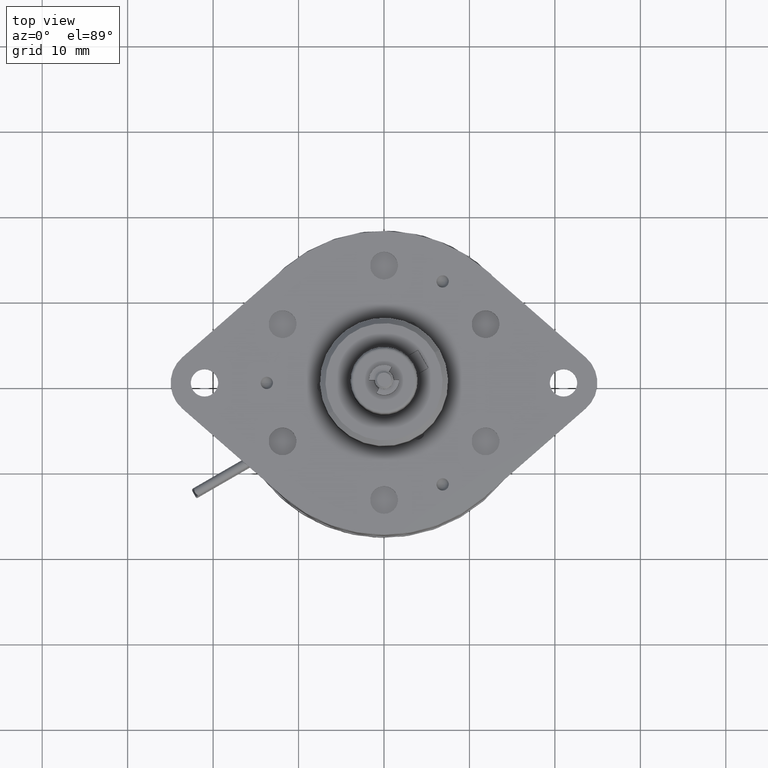
[diagram: clean part render]
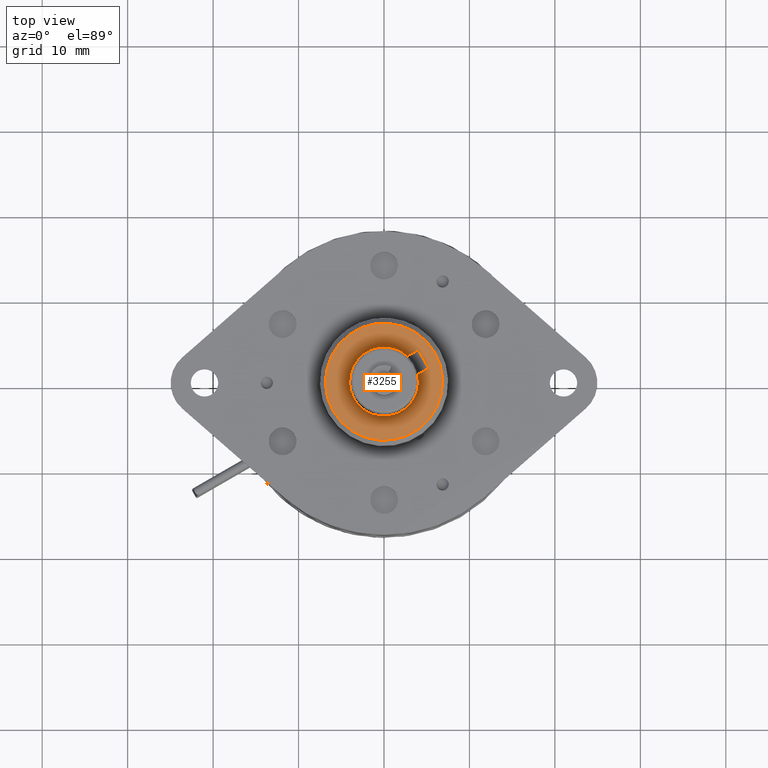
[diagram: same view with one face highlighted and labeled with its STEP entity id]
A machine part, top view. The second image highlights one B-rep face of the part: STEP entity #3255.
In plain terms, the highlighted planar face has unit normal (0, 0, -1).
Its self-contained STEP definition (entity closure, byte-faithful):
#3002=DIRECTION('',(-4.309291866472E-14,1.E0,0.E0));
#3003=VECTOR('',#3002,5.426430416122E-2);
#3004=CARTESIAN_POINT('',(-4.9E-2,1.507356958388E-1,0.E0));
#3005=LINE('',#3004,#3003);
#3006=CARTESIAN_POINT('',(0.E0,0.E0,0.E0));
#3007=DIRECTION('',(0.E0,0.E0,-1.E0));
#3008=DIRECTION('',(0.E0,-1.E0,0.E0));
#3009=AXIS2_PLACEMENT_3D('',#3006,#3007,#3008);
#3011=CARTESIAN_POINT('',(0.E0,0.E0,0.E0));
#3012=DIRECTION('',(0.E0,0.E0,-1.E0));
#3013=DIRECTION('',(0.E0,1.E0,0.E0));
#3014=AXIS2_PLACEMENT_3D('',#3011,#3012,#3013);
#3016=CARTESIAN_POINT('',(4.4E-2,2.05E-1,0.E0));
#3017=DIRECTION('',(0.E0,0.E0,1.E0));
#3018=DIRECTION('',(1.E0,-1.110223024625E-14,0.E0));
#3019=AXIS2_PLACEMENT_3D('',#3016,#3017,#3018);
#3021=CARTESIAN_POINT('',(-4.4E-2,2.05E-1,0.E0));
#3022=DIRECTION('',(0.E0,0.E0,1.E0));
#3023=DIRECTION('',(0.E0,1.E0,0.E0));
#3024=AXIS2_PLACEMENT_3D('',#3021,#3022,#3023);
#3026=CARTESIAN_POINT('',(0.E0,0.E0,0.E0));
#3027=DIRECTION('',(0.E0,0.E0,1.E0));
#3028=DIRECTION('',(-3.091482649842E-1,9.510138538724E-1,0.E0));
#3029=AXIS2_PLACEMENT_3D('',#3026,#3027,#3028);
#3031=CARTESIAN_POINT('',(0.E0,0.E0,0.E0));
#3032=DIRECTION('',(0.E0,0.E0,1.E0));
#3033=DIRECTION('',(0.E0,-1.E0,0.E0));
#3034=AXIS2_PLACEMENT_3D('',#3031,#3032,#3033);
#3100=DIRECTION('',(-4.334866298914E-14,-1.E0,0.E0));
#3101=VECTOR('',#3100,5.426430416122E-2);
#3102=CARTESIAN_POINT('',(4.9E-2,2.05E-1,0.E0));
#3103=LINE('',#3102,#3101);
#3112=DIRECTION('',(1.E0,0.E0,0.E0));
#3113=VECTOR('',#3112,8.8E-2);
#3114=CARTESIAN_POINT('',(-4.4E-2,2.1E-1,0.E0));
#3115=LINE('',#3114,#3113);
#3132=CARTESIAN_POINT('',(4.9E-2,1.507356958388E-1,0.E0));
#3133=VERTEX_POINT('',#3132);
#3134=CARTESIAN_POINT('',(0.E0,-1.585E-1,0.E0));
#3135=VERTEX_POINT('',#3134);
#3136=CARTESIAN_POINT('',(-4.9E-2,1.507356958388E-1,0.E0));
#3137=VERTEX_POINT('',#3136);
#3146=CARTESIAN_POINT('',(-4.9E-2,2.05E-1,0.E0));
#3147=VERTEX_POINT('',#3146);
#3148=CARTESIAN_POINT('',(0.E0,-2.7E-1,0.E0));
#3149=CARTESIAN_POINT('',(0.E0,2.7E-1,0.E0));
#3150=VERTEX_POINT('',#3148);
#3151=VERTEX_POINT('',#3149);
#3152=CARTESIAN_POINT('',(4.9E-2,2.05E-1,0.E0));
#3153=VERTEX_POINT('',#3152);
#3154=CARTESIAN_POINT('',(4.4E-2,2.1E-1,0.E0));
#3155=VERTEX_POINT('',#3154);
#3156=CARTESIAN_POINT('',(-4.4E-2,2.1E-1,0.E0));
#3157=VERTEX_POINT('',#3156);
#3231=CARTESIAN_POINT('',(0.E0,0.E0,0.E0));
#3232=DIRECTION('',(0.E0,0.E0,-1.E0));
#3233=DIRECTION('',(0.E0,-1.E0,0.E0));
#3234=AXIS2_PLACEMENT_3D('',#3231,#3232,#3233);
#3235=PLANE('',#3234);
#3237=ORIENTED_EDGE('',*,*,#3236,.T.);
#3239=ORIENTED_EDGE('',*,*,#3238,.T.);
#3240=EDGE_LOOP('',(#3237,#3239));
#3241=FACE_OUTER_BOUND('',#3240,.F.);
#3243=ORIENTED_EDGE('',*,*,#3242,.F.);
#3245=ORIENTED_EDGE('',*,*,#3244,.T.);
#3247=ORIENTED_EDGE('',*,*,#3246,.F.);
#3249=ORIENTED_EDGE('',*,*,#3248,.T.);
#3250=ORIENTED_EDGE('',*,*,#3224,.F.);
#3251=ORIENTED_EDGE('',*,*,#3189,.T.);
#3252=ORIENTED_EDGE('',*,*,#3187,.T.);
#3253=EDGE_LOOP('',(#3243,#3245,#3247,#3249,#3250,#3251,#3252));
#3254=FACE_BOUND('',#3253,.F.);
#3255=ADVANCED_FACE('',(#3241,#3254),#3235,.F.);
#3010=CIRCLE('',#3009,2.7E-1);
#3015=CIRCLE('',#3014,2.7E-1);
#3020=CIRCLE('',#3019,5.E-3);
#3025=CIRCLE('',#3024,5.E-3);
#3030=CIRCLE('',#3029,1.585E-1);
#3035=CIRCLE('',#3034,1.585E-1);
#3187=EDGE_CURVE('',#3135,#3133,#3035,.T.);
#3189=EDGE_CURVE('',#3137,#3135,#3030,.T.);
#3224=EDGE_CURVE('',#3137,#3147,#3005,.T.);
#3236=EDGE_CURVE('',#3150,#3151,#3010,.T.);
#3238=EDGE_CURVE('',#3151,#3150,#3015,.T.);
#3242=EDGE_CURVE('',#3153,#3133,#3103,.T.);
#3244=EDGE_CURVE('',#3153,#3155,#3020,.T.);
#3246=EDGE_CURVE('',#3157,#3155,#3115,.T.);
#3248=EDGE_CURVE('',#3157,#3147,#3025,.T.);